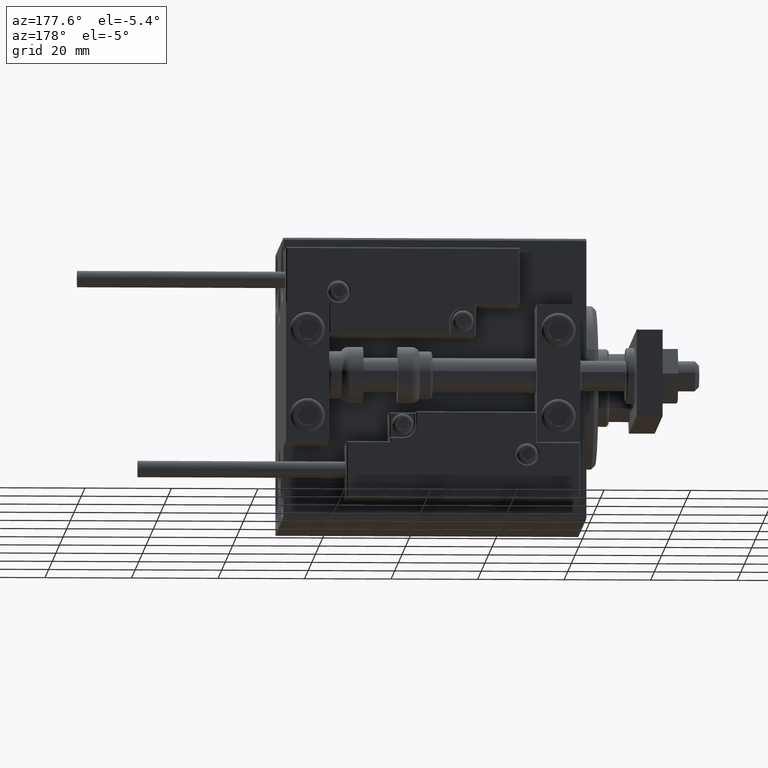
[diagram: clean part render]
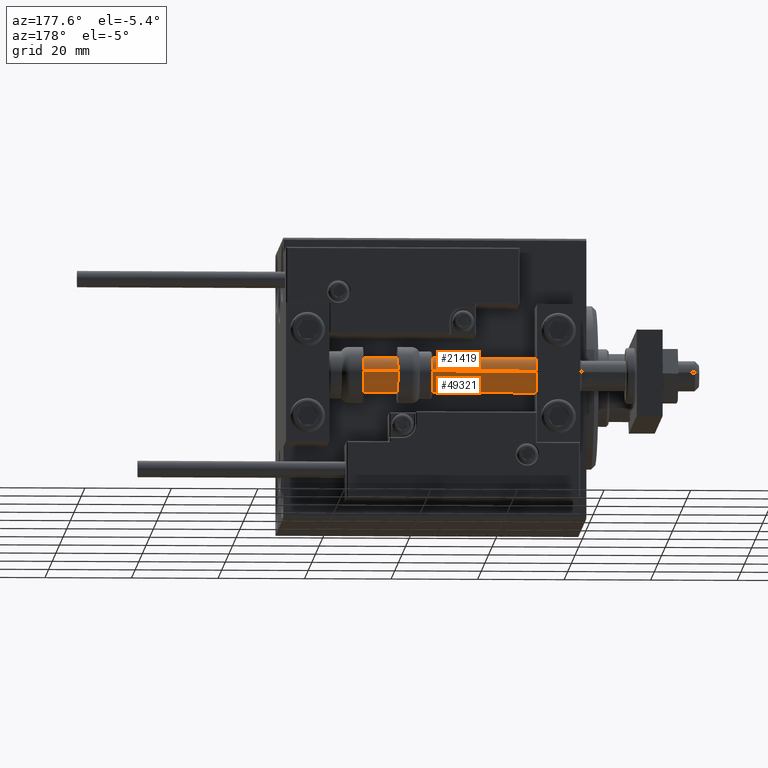
[diagram: same view with one multi-face feature highlighted, each face labeled with its STEP entity id]
A machine part, auxiliary view. The highlighted faces form ONE feature: a constant-radius fillet chain: 2 tangent blend faces with common blend radius 4 mm. The faces share edges in the B-rep.
Their STEP definitions:
[1] entity #21419 (Cylinder):
#2131 = EDGE_CURVE ( 'NONE', #47604, #28415, #5462, .T. ) ;
#3192 = EDGE_CURVE ( 'NONE', #34694, #47604, #36080, .T. ) ;
#4887 = VECTOR ( 'NONE', #6042, 1000.000000000000000 ) ;
#5462 = LINE ( 'NONE', #17135, #38466 ) ;
#6042 = DIRECTION ( 'NONE',  ( -0.000000000000000000, -0.000000000000000000, -1.000000000000000000 ) ) ;
#6207 = VERTEX_POINT ( 'NONE', #42658 ) ;
#9403 = AXIS2_PLACEMENT_3D ( 'NONE', #32772, #36828, #14536 ) ;
#9670 = DIRECTION ( 'NONE',  ( -1.000000000000000000, 0.000000000000000000, 0.000000000000000000 ) ) ;
#10901 = ORIENTED_EDGE ( 'NONE', *, *, #16618, .T. ) ;
#12619 = EDGE_LOOP ( 'NONE', ( #45067, #10901, #31127, #42621 ) ) ;
#14536 = DIRECTION ( 'NONE',  ( 1.000000000000000000, 0.000000000000000000, 0.000000000000000000 ) ) ;
#16618 = EDGE_CURVE ( 'NONE', #34694, #6207, #18637, .T. ) ;
#17135 = CARTESIAN_POINT ( 'NONE',  ( -4.000000000000000000, 0.000000000000000000, 70.00000000000000000 ) ) ;
#17452 = CARTESIAN_POINT ( 'NONE',  ( 4.000000000000000000, 4.898587196589412829E-16, 70.00000000000000000 ) ) ;
#18637 = LINE ( 'NONE', #17452, #4887 ) ;
#19252 = CARTESIAN_POINT ( 'NONE',  ( -4.000000000000000000, 0.000000000000000000, 2.000000000000029310 ) ) ;
#20177 = DIRECTION ( 'NONE',  ( -0.000000000000000000, -0.000000000000000000, -1.000000000000000000 ) ) ;
#21419 = ADVANCED_FACE ( 'NONE', ( #44890 ), #36764, .T. ) ;
#22391 = EDGE_CURVE ( 'NONE', #6207, #28415, #49773, .T. ) ;
#28415 = VERTEX_POINT ( 'NONE', #19252 ) ;
#28638 = CARTESIAN_POINT ( 'NONE',  ( 0.000000000000000000, 0.000000000000000000, 2.000000000000029310 ) ) ;
#28747 = CARTESIAN_POINT ( 'NONE',  ( -4.000000000000000000, 0.000000000000000000, 70.00000000000000000 ) ) ;
#29541 = AXIS2_PLACEMENT_3D ( 'NONE', #28638, #33424, #36478 ) ;
#31127 = ORIENTED_EDGE ( 'NONE', *, *, #22391, .T. ) ;
#32477 = DIRECTION ( 'NONE',  ( -0.000000000000000000, -0.000000000000000000, -1.000000000000000000 ) ) ;
#32772 = CARTESIAN_POINT ( 'NONE',  ( 0.000000000000000000, 0.000000000000000000, 70.00000000000000000 ) ) ;
#33424 = DIRECTION ( 'NONE',  ( -0.000000000000000000, -0.000000000000000000, 1.000000000000000000 ) ) ;
#33725 = CARTESIAN_POINT ( 'NONE',  ( 4.000000000000000000, 4.898587196589412829E-16, 70.00000000000000000 ) ) ;
#34694 = VERTEX_POINT ( 'NONE', #33725 ) ;
#35173 = AXIS2_PLACEMENT_3D ( 'NONE', #41079, #32477, #9670 ) ;
#36080 = CIRCLE ( 'NONE', #9403, 4.000000000000000000 ) ;
#36478 = DIRECTION ( 'NONE',  ( 1.000000000000000000, 0.000000000000000000, 0.000000000000000000 ) ) ;
#36764 = CYLINDRICAL_SURFACE ( 'NONE', #35173, 4.000000000000000000 ) ;
#36828 = DIRECTION ( 'NONE',  ( 0.000000000000000000, 0.000000000000000000, 1.000000000000000000 ) ) ;
#38466 = VECTOR ( 'NONE', #20177, 1000.000000000000000 ) ;
#41079 = CARTESIAN_POINT ( 'NONE',  ( 0.000000000000000000, 0.000000000000000000, 70.00000000000000000 ) ) ;
#42621 = ORIENTED_EDGE ( 'NONE', *, *, #2131, .F. ) ;
#42658 = CARTESIAN_POINT ( 'NONE',  ( 4.000000000000000000, 4.898587196589412829E-16, 2.000000000000029310 ) ) ;
#44890 = FACE_OUTER_BOUND ( 'NONE', #12619, .T. ) ;
#45067 = ORIENTED_EDGE ( 'NONE', *, *, #3192, .F. ) ;
#47604 = VERTEX_POINT ( 'NONE', #28747 ) ;
#49773 = CIRCLE ( 'NONE', #29541, 4.000000000000000000 ) ;
[2] entity #49321 (Cylinder):
#139 = DIRECTION ( 'NONE',  ( -0.000000000000000000, -0.000000000000000000, -1.000000000000000000 ) ) ;
#601 = ORIENTED_EDGE ( 'NONE', *, *, #2131, .T. ) ;
#623 = FACE_OUTER_BOUND ( 'NONE', #22283, .T. ) ;
#2131 = EDGE_CURVE ( 'NONE', #47604, #28415, #5462, .T. ) ;
#2708 = ORIENTED_EDGE ( 'NONE', *, *, #7758, .F. ) ;
#4267 = DIRECTION ( 'NONE',  ( 1.000000000000000000, 0.000000000000000000, 0.000000000000000000 ) ) ;
#4423 = CARTESIAN_POINT ( 'NONE',  ( 0.000000000000000000, 0.000000000000000000, 70.00000000000000000 ) ) ;
#4887 = VECTOR ( 'NONE', #6042, 1000.000000000000000 ) ;
#5462 = LINE ( 'NONE', #17135, #38466 ) ;
#6042 = DIRECTION ( 'NONE',  ( -0.000000000000000000, -0.000000000000000000, -1.000000000000000000 ) ) ;
#6207 = VERTEX_POINT ( 'NONE', #42658 ) ;
#7493 = DIRECTION ( 'NONE',  ( -1.000000000000000000, 0.000000000000000000, 0.000000000000000000 ) ) ;
#7734 = CYLINDRICAL_SURFACE ( 'NONE', #45228, 4.000000000000000000 ) ;
#7758 = EDGE_CURVE ( 'NONE', #47604, #34694, #43551, .T. ) ;
#16618 = EDGE_CURVE ( 'NONE', #34694, #6207, #18637, .T. ) ;
#17135 = CARTESIAN_POINT ( 'NONE',  ( -4.000000000000000000, 0.000000000000000000, 70.00000000000000000 ) ) ;
#17452 = CARTESIAN_POINT ( 'NONE',  ( 4.000000000000000000, 4.898587196589412829E-16, 70.00000000000000000 ) ) ;
#18637 = LINE ( 'NONE', #17452, #4887 ) ;
#19252 = CARTESIAN_POINT ( 'NONE',  ( -4.000000000000000000, 0.000000000000000000, 2.000000000000029310 ) ) ;
#20177 = DIRECTION ( 'NONE',  ( -0.000000000000000000, -0.000000000000000000, -1.000000000000000000 ) ) ;
#21542 = CIRCLE ( 'NONE', #47453, 4.000000000000000000 ) ;
#22283 = EDGE_LOOP ( 'NONE', ( #27841, #2708, #601, #44313 ) ) ;
#26024 = EDGE_CURVE ( 'NONE', #28415, #6207, #21542, .T. ) ;
#27247 = DIRECTION ( 'NONE',  ( 1.000000000000000000, 0.000000000000000000, 0.000000000000000000 ) ) ;
#27841 = ORIENTED_EDGE ( 'NONE', *, *, #16618, .F. ) ;
#28415 = VERTEX_POINT ( 'NONE', #19252 ) ;
#28747 = CARTESIAN_POINT ( 'NONE',  ( -4.000000000000000000, 0.000000000000000000, 70.00000000000000000 ) ) ;
#30639 = CARTESIAN_POINT ( 'NONE',  ( 0.000000000000000000, 0.000000000000000000, 70.00000000000000000 ) ) ;
#32055 = DIRECTION ( 'NONE',  ( -0.000000000000000000, -0.000000000000000000, 1.000000000000000000 ) ) ;
#33725 = CARTESIAN_POINT ( 'NONE',  ( 4.000000000000000000, 4.898587196589412829E-16, 70.00000000000000000 ) ) ;
#34694 = VERTEX_POINT ( 'NONE', #33725 ) ;
#38466 = VECTOR ( 'NONE', #20177, 1000.000000000000000 ) ;
#39007 = DIRECTION ( 'NONE',  ( 0.000000000000000000, 0.000000000000000000, 1.000000000000000000 ) ) ;
#39659 = CARTESIAN_POINT ( 'NONE',  ( 0.000000000000000000, 0.000000000000000000, 2.000000000000029310 ) ) ;
#42658 = CARTESIAN_POINT ( 'NONE',  ( 4.000000000000000000, 4.898587196589412829E-16, 2.000000000000029310 ) ) ;
#43551 = CIRCLE ( 'NONE', #50025, 4.000000000000000000 ) ;
#44313 = ORIENTED_EDGE ( 'NONE', *, *, #26024, .T. ) ;
#45228 = AXIS2_PLACEMENT_3D ( 'NONE', #4423, #139, #7493 ) ;
#47453 = AXIS2_PLACEMENT_3D ( 'NONE', #39659, #32055, #27247 ) ;
#47604 = VERTEX_POINT ( 'NONE', #28747 ) ;
#49321 = ADVANCED_FACE ( 'NONE', ( #623 ), #7734, .T. ) ;
#50025 = AXIS2_PLACEMENT_3D ( 'NONE', #30639, #39007, #4267 ) ;